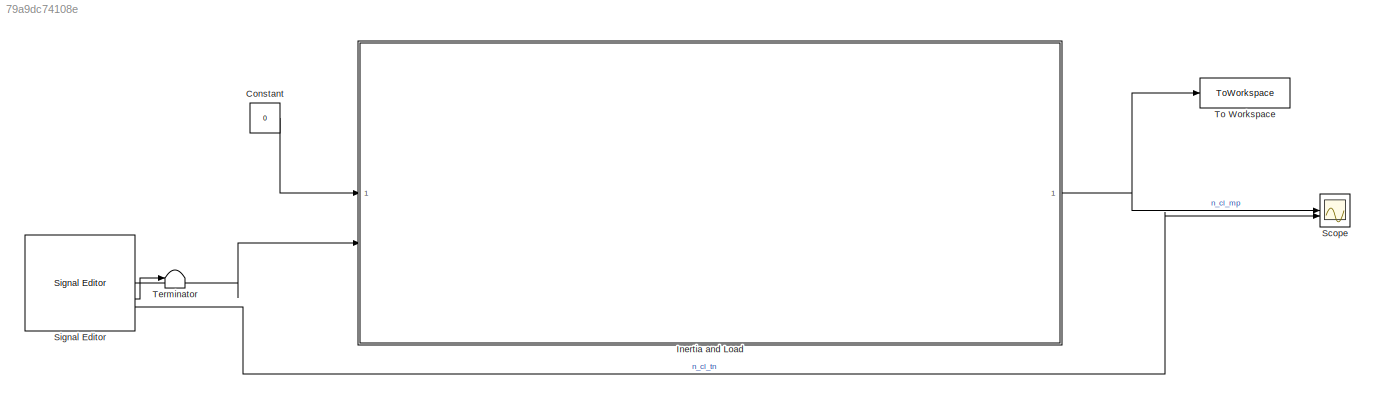
MODEL slx_79a9dc74108e
KIND model
CONFIG AbsTol = 1e-3
CONFIG EnableMultiTasking = on
CONFIG FixedStep = 0.00025
CONFIG MaxStep = auto
CONFIG MinStep = auto
CONFIG RelTol = 1e-3
CONFIG SampleTimeConstraint = Unconstrained
CONFIG SolverName = FixedStepAuto
CONFIG StartTime = 0
CONFIG StopTime = 350.02
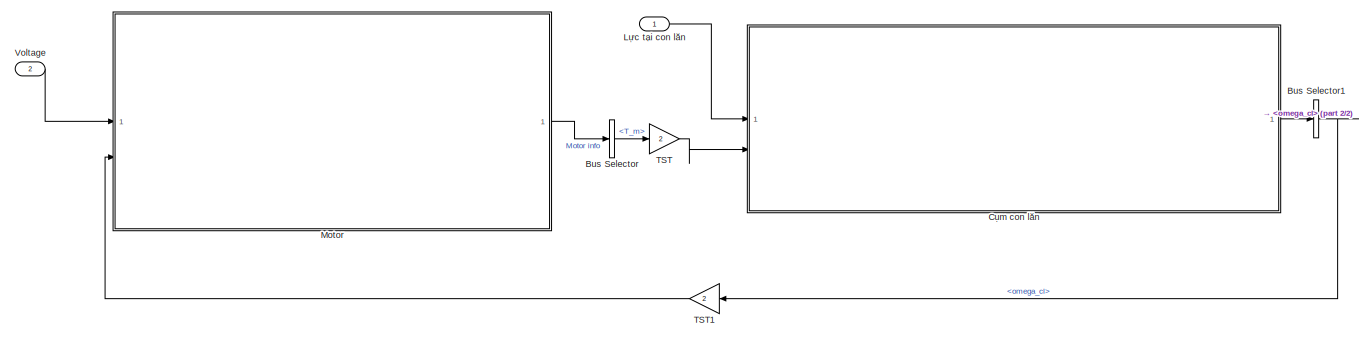
[diagram:  Inertia and Load - part 1/2, most of the canvas]
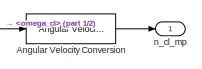
[diagram:  Inertia and Load - part 2/2, middle right region]
BLOCK [SubSystem]  Inertia and Load
BLOCK [Reference]  Inertia and Load/Angular Velocity Conversion  REF=aerolibconvert2/Angular Velocity
Conversion
  SourceBlock = aerolibconvert2/Angular Velocity\nConversion
  SourceType = Angular Velocity Conversion
BLOCK [BusSelector]  Inertia and Load/Bus Selector
  OutputSignals = T_m
BLOCK [BusSelector]  Inertia and Load/Bus Selector1
  OutputSignals = omega_cl
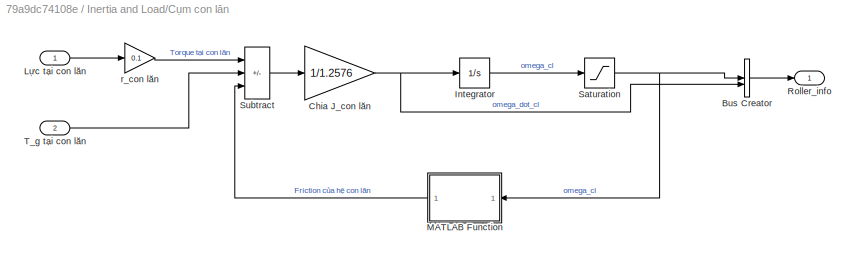
BLOCK [SubSystem]  Inertia and Load/Cụm con lăn
BLOCK [BusCreator]  Inertia and Load/Cụm con lăn/Bus Creator
  DisplayOption = bar
  InheritFromInputs = on
  Inputs = 2
BLOCK [Gain]  Inertia and Load/Cụm con lăn/Chia J_con lăn
  Gain = 1/1.2576
BLOCK [Integrator]  Inertia and Load/Cụm con lăn/Integrator
  LimitOutput = on
  LowerSaturationLimit = 0
BLOCK [Inport]  Inertia and Load/Cụm con lăn/Lực tại con lăn
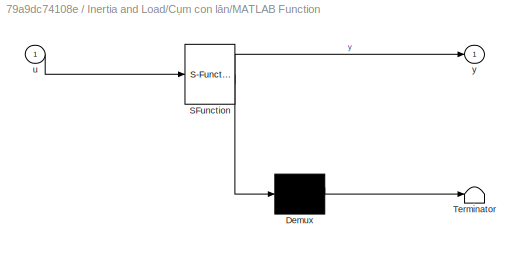
BLOCK [SubSystem]  Inertia and Load/Cụm con lăn/MATLAB Function
  ErrorFcn = Stateflow.Translate.translate
  NameLocation = top
  PermitHierarchicalResolution = ExplicitOnly
  SFBlockType = MATLAB Function
  TreatAsAtomicUnit = on
BLOCK [Demux]  Inertia and Load/Cụm con lăn/MATLAB Function/ Demux 
  Outputs = 1
BLOCK [S-Function]  Inertia and Load/Cụm con lăn/MATLAB Function/ SFunction 
  EnableBusSupport = on
  FunctionName = sf_sfun
  PortCounts = [1 2]
  SFcnIsStateOwnerBlock = off
  SFunctionDeploymentMode = off
  Tag = Stateflow S-Function 4
BLOCK [Terminator]  Inertia and Load/Cụm con lăn/MATLAB Function/ Terminator 
BLOCK [Inport]  Inertia and Load/Cụm con lăn/MATLAB Function/u
BLOCK [Outport]  Inertia and Load/Cụm con lăn/MATLAB Function/y
BLOCK [Outport]  Inertia and Load/Cụm con lăn/Roller_info
BLOCK [Saturate]  Inertia and Load/Cụm con lăn/Saturation
  LowerLimit = 0
  UpperLimit = inf
BLOCK [Sum]  Inertia and Load/Cụm con lăn/Subtract
  IconShape = rectangular
  Inputs = ++-
BLOCK [Inport]  Inertia and Load/Cụm con lăn/T_g tại con lăn
  Port = 2
BLOCK [Gain]  Inertia and Load/Cụm con lăn/r_con lăn
  Gain = 0.1
BLOCK [Inport]  Inertia and Load/Lực tại con lăn
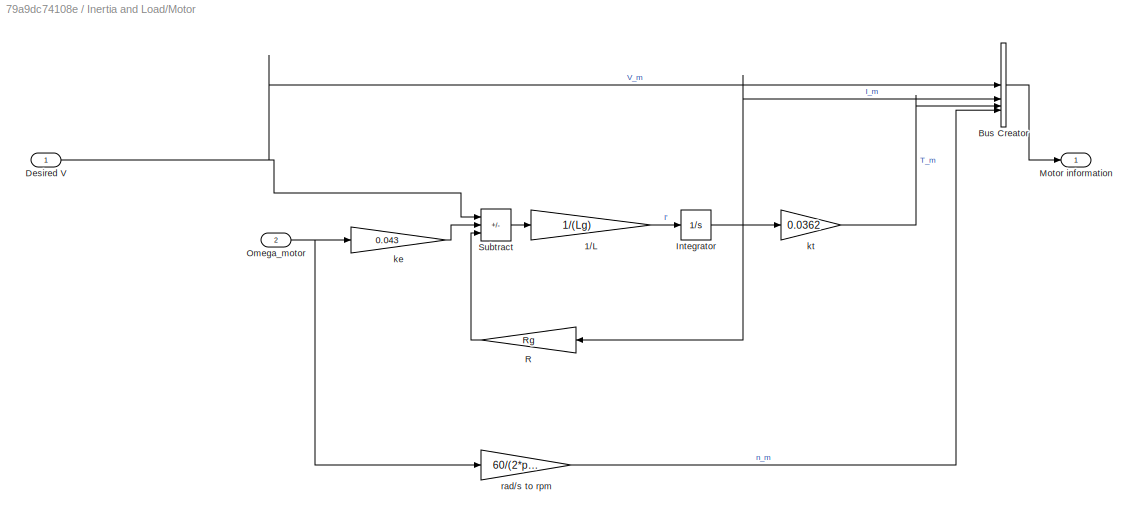
BLOCK [SubSystem]  Inertia and Load/Motor
BLOCK [Inport]  Inertia and Load/Motor/ Desired V
BLOCK [Gain]  Inertia and Load/Motor/1//L
  Gain = 1/(Lg)
BLOCK [BusCreator]  Inertia and Load/Motor/Bus Creator
  DisplayOption = bar
  InheritFromInputs = on
  Inputs = 4
BLOCK [Integrator]  Inertia and Load/Motor/Integrator
BLOCK [Outport]  Inertia and Load/Motor/Motor information
BLOCK [Inport]  Inertia and Load/Motor/Omega_motor
  NameLocation = top
  Port = 2
BLOCK [Gain]  Inertia and Load/Motor/R
  Gain = Rg
  NameLocation = top
BLOCK [Sum]  Inertia and Load/Motor/Subtract
  IconShape = rectangular
  Inputs = +--
BLOCK [Gain]  Inertia and Load/Motor/ke
  Gain = 0.043
BLOCK [Gain]  Inertia and Load/Motor/kt
  Gain = 0.0362
BLOCK [Gain]  Inertia and Load/Motor/rad//s to rpm
  Gain = 60/(2*pi)
BLOCK [Gain]  Inertia and Load/TST
  Gain = 2
BLOCK [Gain]  Inertia and Load/TST1
  Gain = 2
  NameLocation = top
BLOCK [Inport]  Inertia and Load/Voltage
  Port = 2
BLOCK [Outport]  Inertia and Load/n_cl_mp
BLOCK [Constant] Constant
  Value = 0
BLOCK [Scope] Scope
  Floating = off
  NumInputPorts = 2
  ScopeSpecificationString = Simulink.scopes.TimeScopeBlockCfg('CurrentConfiguration', extmgr.ConfigurationSet(extmgr.Configuration('Core','General UI',true,'FigureColor',[1 1 1]),extmgr.Configuration('Core','Source UI',true),extmgr.Configuration('Sources','WiredSimulink',true),extmgr.Configuration('Visuals','Time Domain',true,'SerializedDisplays',{struct('MinYLimReal','-37.94401','MaxYLimReal','341.49613','YLabelReal','','Mi...<+1517ch>
BLOCK [Reference] Signal Editor  REF=SignalEditorBlockLib/Signal Editor
  LibrarySourceBlock = simulink/Sources/Signal Editor
  SourceBlock = SignalEditorBlockLib/Signal Editor
  SourceType = SignalEditor
  UserDataPersistent = on
BLOCK [Terminator] Terminator
BLOCK [ToWorkspace] To Workspace
  FixptAsFi = on
  MaxDataPoints = inf
  SampleTime = -1
  SaveFormat = Timeseries
  VariableName = n_cl
LINE  Inertia and Load/Angular Velocity Conversion:1 ->  Inertia and Load/n_cl_mp:1
NET  Inertia and Load/Bus Selector1:1 ->  Inertia and Load/Angular Velocity Conversion:1,  Inertia and Load/TST1:1
LINE  Inertia and Load/Bus Selector:1 ->  Inertia and Load/TST:1
LINE  Inertia and Load/Cụm con lăn/Bus Creator:1 ->  Inertia and Load/Cụm con lăn/Roller_info:1
NET  Inertia and Load/Cụm con lăn/Chia J_con lăn:1 ->  Inertia and Load/Cụm con lăn/Bus Creator:2,  Inertia and Load/Cụm con lăn/Integrator:1
LINE  Inertia and Load/Cụm con lăn/Integrator:1 ->  Inertia and Load/Cụm con lăn/Saturation:1
LINE  Inertia and Load/Cụm con lăn/Lực tại con lăn:1 ->  Inertia and Load/Cụm con lăn/r_con lăn:1
LINE  Inertia and Load/Cụm con lăn/MATLAB Function:1 ->  Inertia and Load/Cụm con lăn/Subtract:3
NET  Inertia and Load/Cụm con lăn/Saturation:1 ->  Inertia and Load/Cụm con lăn/Bus Creator:1,  Inertia and Load/Cụm con lăn/MATLAB Function:1
LINE  Inertia and Load/Cụm con lăn/Subtract:1 ->  Inertia and Load/Cụm con lăn/Chia J_con lăn:1
LINE  Inertia and Load/Cụm con lăn/T_g tại con lăn:1 ->  Inertia and Load/Cụm con lăn/Subtract:2
LINE  Inertia and Load/Cụm con lăn/r_con lăn:1 ->  Inertia and Load/Cụm con lăn/Subtract:1
LINE  Inertia and Load/Cụm con lăn:1 ->  Inertia and Load/Bus Selector1:1
LINE  Inertia and Load/Lực tại con lăn:1 ->  Inertia and Load/Cụm con lăn:1
NET  Inertia and Load/Motor/ Desired V:1 ->  Inertia and Load/Motor/Bus Creator:1,  Inertia and Load/Motor/Subtract:1
LINE  Inertia and Load/Motor/1//L:1 ->  Inertia and Load/Motor/Integrator:1
LINE  Inertia and Load/Motor/Bus Creator:1 ->  Inertia and Load/Motor/Motor information:1
NET  Inertia and Load/Motor/Integrator:1 ->  Inertia and Load/Motor/Bus Creator:2,  Inertia and Load/Motor/R:1,  Inertia and Load/Motor/kt:1
NET  Inertia and Load/Motor/Omega_motor:1 ->  Inertia and Load/Motor/ke:1,  Inertia and Load/Motor/rad//s to rpm:1
LINE  Inertia and Load/Motor/R:1 ->  Inertia and Load/Motor/Subtract:3
LINE  Inertia and Load/Motor/Subtract:1 ->  Inertia and Load/Motor/1//L:1
LINE  Inertia and Load/Motor/ke:1 ->  Inertia and Load/Motor/Subtract:2
LINE  Inertia and Load/Motor/kt:1 ->  Inertia and Load/Motor/Bus Creator:3
LINE  Inertia and Load/Motor/rad//s to rpm:1 ->  Inertia and Load/Motor/Bus Creator:4
LINE  Inertia and Load/Motor:1 ->  Inertia and Load/Bus Selector:1
LINE  Inertia and Load/TST1:1 ->  Inertia and Load/Motor:2
LINE  Inertia and Load/TST:1 ->  Inertia and Load/Cụm con lăn:2
LINE  Inertia and Load/Voltage:1 ->  Inertia and Load/Motor:1
NET  Inertia and Load:1 -> Scope:1, To Workspace:1
LINE Constant:1 ->  Inertia and Load:1
LINE Signal Editor:1 ->  Inertia and Load:2
LINE Signal Editor:2 -> Terminator:1
LINE Signal Editor:3 -> Scope:2
note: NET lines group one-source signal fan-out (src -> all destinations, sorted); 1:1 wires keep LINE
CHART  Inertia and Load/Cụm con lăn/MATLAB Function states=1 transitions=1
  STATE_LABEL 'eML_blk_kernel()'
  STATE_LABEL 'SCRIPT:\nfunction y = fcn(u)\n\ny = 0.0362*(0.0601*u+8.2494)*2;\n'
CHART  states=0 transitions=0
